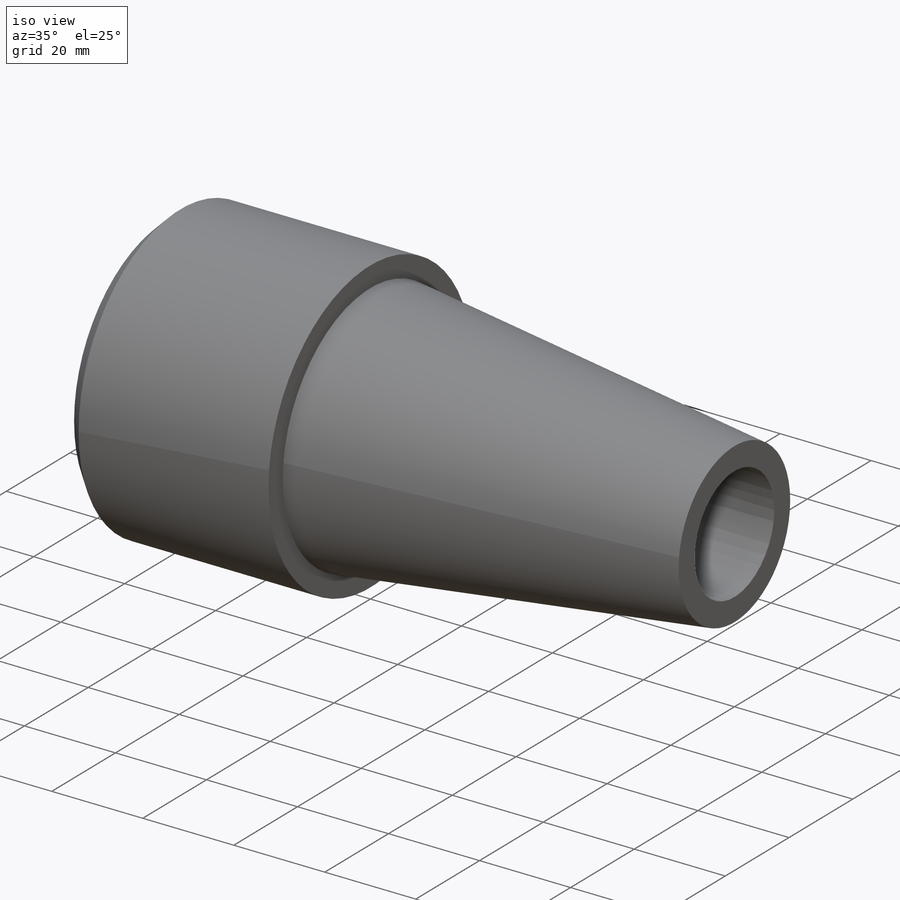
[diagram: iso view]
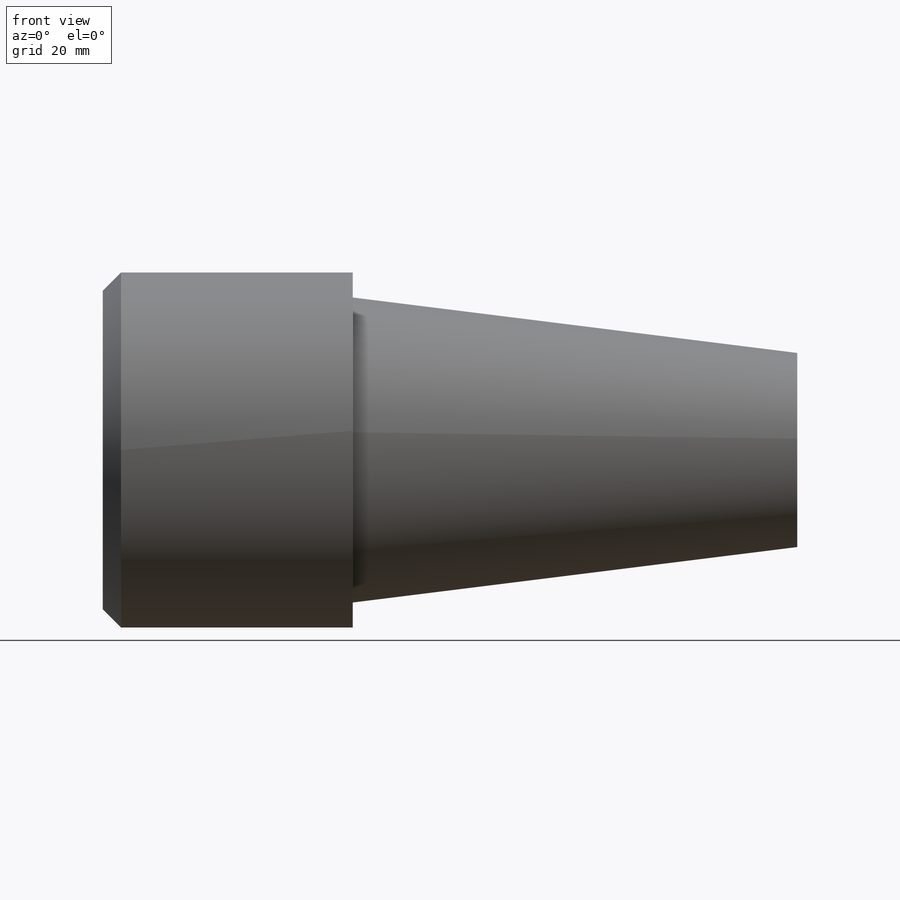
[diagram: front view]
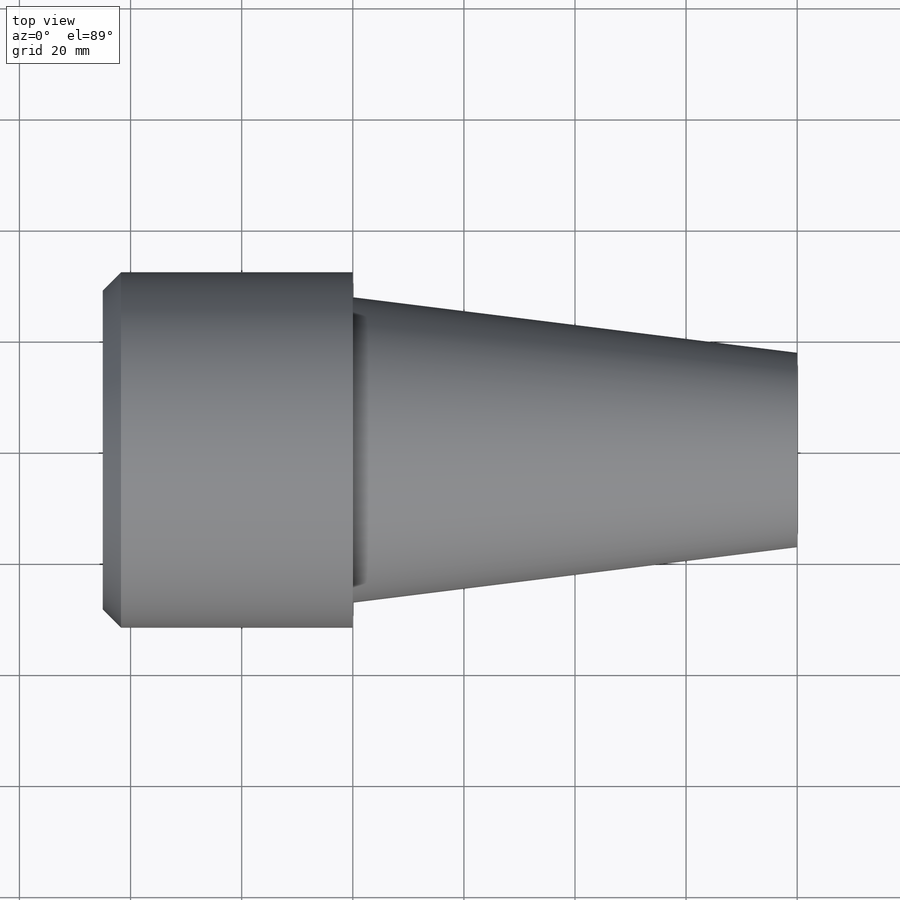
[diagram: top view]
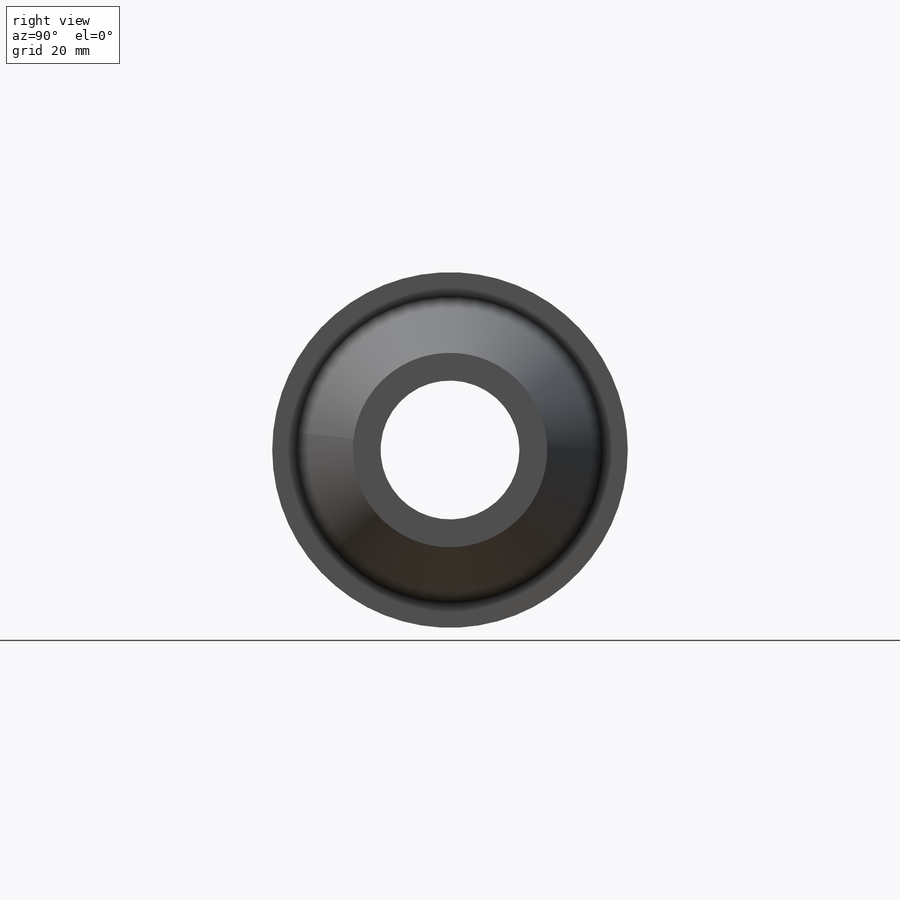
[diagram: right view]
SOLIDWORKS PART (.sldprt)
format: sldprt  version: not decoded by parser v0  size: 257,024 bytes
history: native  units: mm
features: plane x3, sketch x2, material x1, revolve x1, extrude x1, thread x1, chamfer x1 (+9 scaffold rows collapsed)
feature tree (19):
  scaffold x9  (default folders/planes/origin — collapsed)
  material  "Сталь"
  plane  "Спереди"
  plane  "Сверху"
  plane  "Справа"
  sketch  "Эскиз1"  dims[c1.D1=55.0mm c1.D2=75.0mm c1.D3=25.0mm c1.D4=50.0mm c1.D5=37.5mm c1.D6=135.0mm c2.D1=35.0mm c2.D2=125.0mm c2.D4=55.0mm c2.D5=45.0mm c2.D6=105.0mm c2.D7=50.0mm]
  revolve  "Повернуть1"  Angle=360deg
  sketch  "Эскиз4"  dims[D1=64.0mm]
  extrude  "Бобышка-Вытянуть1"  [1 undecoded]
  thread  "Условное изображение резьбы1"  Diameter=57.425mm  [1 undecoded]
  chamfer  "Фаска1"  Distance=3.2875mm Angle=45deg
decode coverage: 5 of 6 modeling features carry decoded parameters
note: 2 parameter values undecoded
note: suppression state not decoded; provenance and decode notes live in map.json
